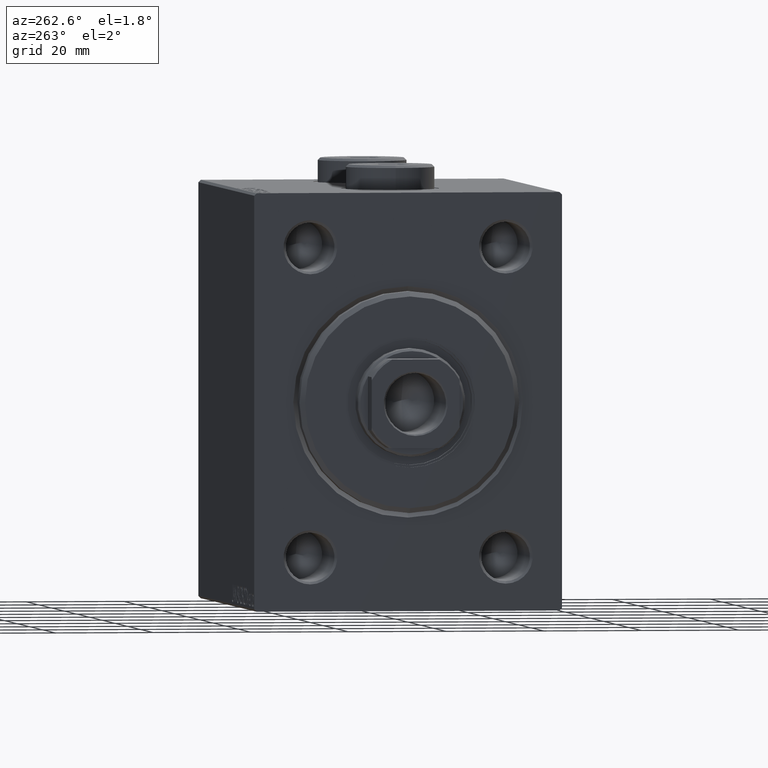
[diagram: clean part render]
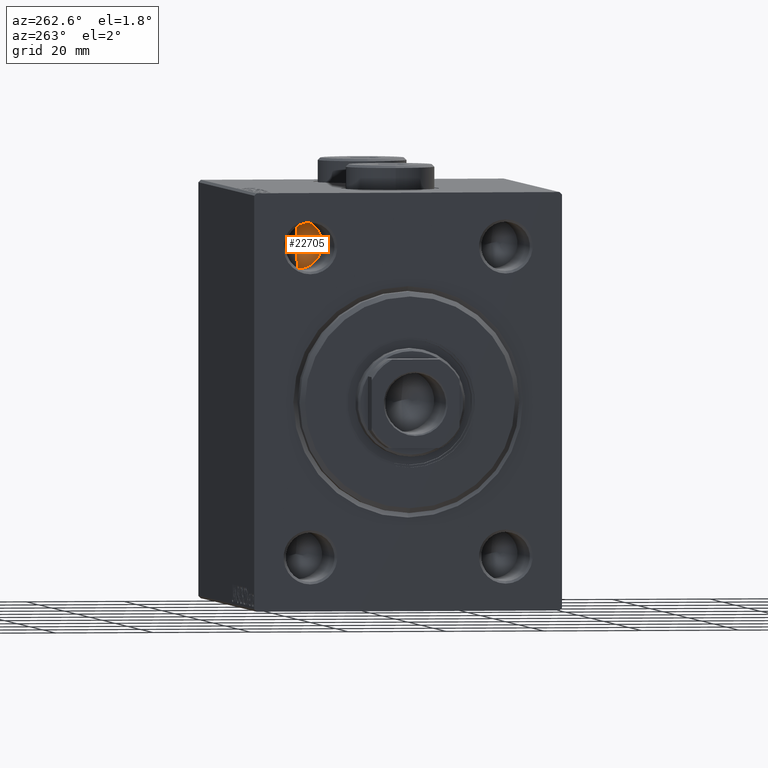
[diagram: same view with one face highlighted and labeled with its STEP entity id]
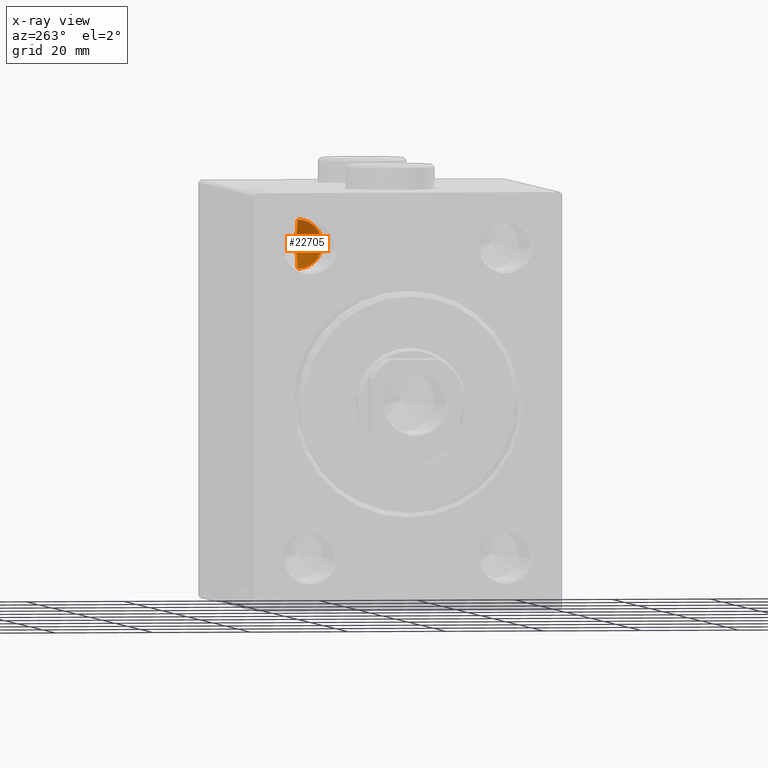
[diagram: x-ray of the same camera — body ghosted, the highlighted face saturated]
A machine part, auxiliary view. The second image highlights one B-rep face of the part: STEP entity #22705.
The next image is the same camera in x-ray: the body ghosted, the highlighted face saturated — about 4% of this face is hidden behind the body in this view.
In plain terms, the highlighted conical surface has half-angle 59 deg.
Its self-contained STEP definition (entity closure, byte-faithful):
#622 = FACE_OUTER_BOUND ( 'NONE', #17002, .T. ) ;
#2466 = ORIENTED_EDGE ( 'NONE', *, *, #10201, .F. ) ;
#2495 = EDGE_CURVE ( 'NONE', #15395, #15104, #21303, .T. ) ;
#9624 = DIRECTION ( 'NONE',  ( -1.000000000000000000, -0.000000000000000000, -0.000000000000000000 ) ) ;
#10201 = EDGE_CURVE ( 'NONE', #36760, #15104, #38823, .T. ) ;
#13603 = AXIS2_PLACEMENT_3D ( 'NONE', #31547, #31775, #14038 ) ;
#14038 = DIRECTION ( 'NONE',  ( 0.000000000000000000, 0.000000000000000000, 1.000000000000000000 ) ) ;
#15089 = ORIENTED_EDGE ( 'NONE', *, *, #2495, .T. ) ;
#15104 = VERTEX_POINT ( 'NONE', #27394 ) ;
#15395 = VERTEX_POINT ( 'NONE', #37245 ) ;
#15995 = DIRECTION ( 'NONE',  ( -0.5150380749100550437, 1.049727191138617956E-16, -0.8571673007021117785 ) ) ;
#17002 = EDGE_LOOP ( 'NONE', ( #2466, #36679, #15089 ) ) ;
#20994 = CARTESIAN_POINT ( 'NONE',  ( 23.00430309513780358, 19.99999999999998934, 31.50000000000000000 ) ) ;
#21303 = CIRCLE ( 'NONE', #29382, 4.999999999999997335 ) ;
#22705 = ADVANCED_FACE ( 'NONE', ( #622 ), #23131, .F. ) ;
#23131 = CONICAL_SURFACE ( 'NONE', #13603, 4.999999999999997335, 1.029744258676653423 ) ;
#23363 = CARTESIAN_POINT ( 'NONE',  ( 20.00000000000000000, 19.99999999999999645, 26.50000000000000355 ) ) ;
#24098 = CARTESIAN_POINT ( 'NONE',  ( 20.00000000000000000, 19.99999999999999645, 36.50000000000000000 ) ) ;
#24921 = VECTOR ( 'NONE', #15995, 1000.000000000000000 ) ;
#27046 = LINE ( 'NONE', #23363, #24921 ) ;
#27257 = VECTOR ( 'NONE', #38141, 1000.000000000000000 ) ;
#27394 = CARTESIAN_POINT ( 'NONE',  ( 20.00000000000000000, 19.99999999999999645, 36.50000000000000000 ) ) ;
#29382 = AXIS2_PLACEMENT_3D ( 'NONE', #40263, #9624, #43954 ) ;
#31547 = CARTESIAN_POINT ( 'NONE',  ( 20.00000000000000000, 19.99999999999999645, 31.50000000000000000 ) ) ;
#31775 = DIRECTION ( 'NONE',  ( -1.000000000000000000, -0.000000000000000000, -0.000000000000000000 ) ) ;
#36679 = ORIENTED_EDGE ( 'NONE', *, *, #38226, .T. ) ;
#36760 = VERTEX_POINT ( 'NONE', #20994 ) ;
#37245 = CARTESIAN_POINT ( 'NONE',  ( 20.00000000000000000, 19.99999999999999645, 26.50000000000000355 ) ) ;
#38141 = DIRECTION ( 'NONE',  ( -0.5150380749100550437, 0.000000000000000000, 0.8571673007021117785 ) ) ;
#38226 = EDGE_CURVE ( 'NONE', #36760, #15395, #27046, .T. ) ;
#38823 = LINE ( 'NONE', #24098, #27257 ) ;
#40263 = CARTESIAN_POINT ( 'NONE',  ( 20.00000000000000000, 19.99999999999999645, 31.50000000000000000 ) ) ;
#43954 = DIRECTION ( 'NONE',  ( 0.000000000000000000, 0.000000000000000000, 1.000000000000000000 ) ) ;